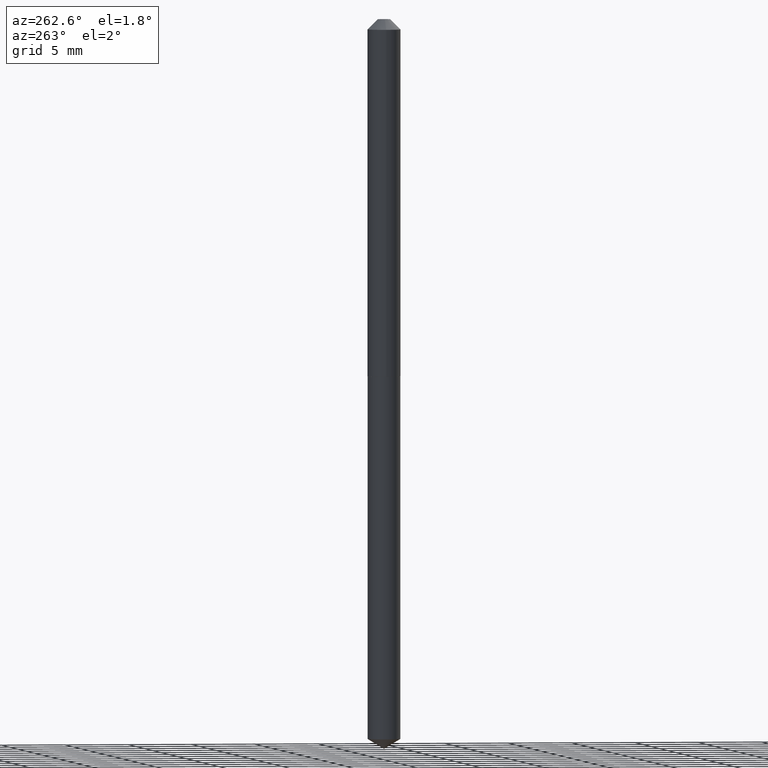
[diagram: clean part render]
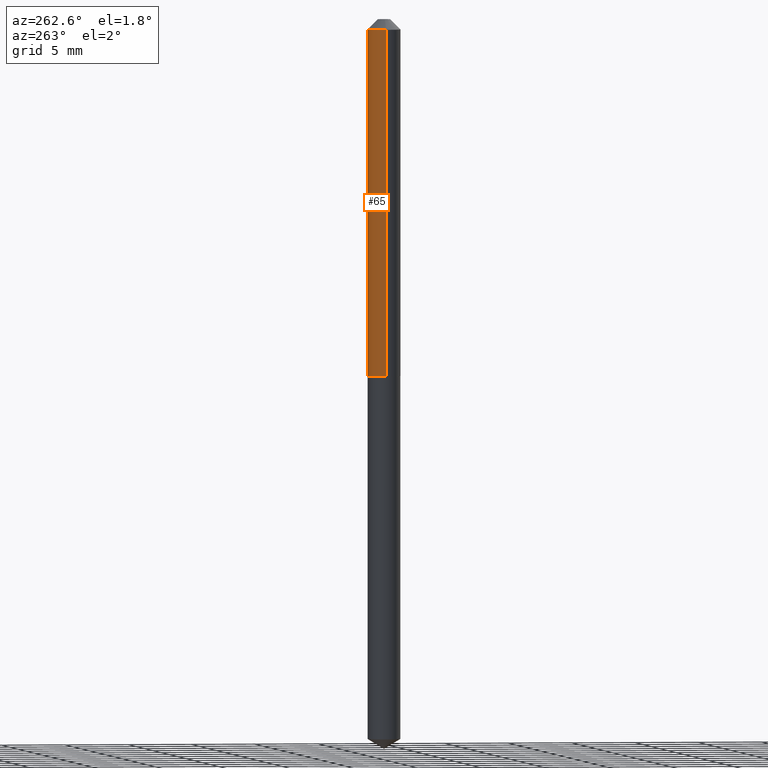
[diagram: same view with one face highlighted and labeled with its STEP entity id]
A machine part, auxiliary view. The second image highlights one B-rep face of the part: STEP entity #65.
In plain terms, the highlighted cylindrical surface (edge-blend (fillet) strip) has radius 1.2891 mm, axis along (-0, 0, 1).
Its self-contained STEP definition (entity closure, byte-faithful):
#6 = EDGE_CURVE ( 'NONE', #131, #77, #123, .T. ) ;
#33 = VERTEX_POINT ( 'NONE', #99 ) ;
#36 = DIRECTION ( 'NONE',  ( 1.000000000000000000, -6.982962677686270655E-15, 0.000000000000000000 ) ) ;
#45 = CYLINDRICAL_SURFACE ( 'NONE', #233, 0.05075000000000008671 ) ;
#52 = CARTESIAN_POINT ( 'NONE',  ( 0.05075000000000014222, -4.198506309958881744E-15, -1.100999999999999979 ) ) ;
#59 = CARTESIAN_POINT ( 'NONE',  ( -0.05075000000000014222, -3.483520515668050958E-15, -1.100999999999999979 ) ) ;
#63 = CIRCLE ( 'NONE', #324, 0.05075000000000001732 ) ;
#65 = ADVANCED_FACE ( 'NONE', ( #309 ), #45, .T. ) ;
#73 = VERTEX_POINT ( 'NONE', #59 ) ;
#77 = VERTEX_POINT ( 'NONE', #314 ) ;
#84 = DIRECTION ( 'NONE',  ( -2.445468806185136877E-29, 3.491481338843145188E-15, 1.000000000000000000 ) ) ;
#92 = DIRECTION ( 'NONE',  ( 1.000000000000000000, -6.982962677686265922E-15, 4.876176775795935793E-29 ) ) ;
#94 = ORIENTED_EDGE ( 'NONE', *, *, #210, .F. ) ;
#99 = CARTESIAN_POINT ( 'NONE',  ( -0.05075000000000001732, -1.616014434554323559E-15, -0.03125000000000021511 ) ) ;
#112 = DIRECTION ( 'NONE',  ( -2.445468806185136597E-29, 3.491481338843145583E-15, 1.000000000000000000 ) ) ;
#123 = LINE ( 'NONE', #375, #305 ) ;
#131 = VERTEX_POINT ( 'NONE', #52 ) ;
#145 = DIRECTION ( 'NONE',  ( -2.445468806185136597E-29, 3.491481338843145583E-15, 1.000000000000000000 ) ) ;
#151 = DIRECTION ( 'NONE',  ( -2.445468806185136877E-29, 3.491481338843145188E-15, 1.000000000000000000 ) ) ;
#162 = ORIENTED_EDGE ( 'NONE', *, *, #6, .F. ) ;
#166 = DIRECTION ( 'NONE',  ( 1.000000000000000000, -6.982962677686265133E-15, 0.000000000000000000 ) ) ;
#181 = CARTESIAN_POINT ( 'NONE',  ( 2.692461155609835411E-29, -3.844120954066303109E-15, -1.100999999999999979 ) ) ;
#183 = EDGE_CURVE ( 'NONE', #73, #33, #230, .T. ) ;
#210 = EDGE_CURVE ( 'NONE', #77, #33, #63, .T. ) ;
#227 = VECTOR ( 'NONE', #84, 39.37007874015748143 ) ;
#230 = LINE ( 'NONE', #350, #227 ) ;
#233 = AXIS2_PLACEMENT_3D ( 'NONE', #289, #112, #92 ) ;
#258 = CARTESIAN_POINT ( 'NONE',  ( 7.642090019328603538E-31, -1.091087918388490390E-16, -0.03125000000000021511 ) ) ;
#282 = ORIENTED_EDGE ( 'NONE', *, *, #183, .T. ) ;
#289 = CARTESIAN_POINT ( 'NONE',  ( 0.000000000000000000, 0.000000000000000000, 0.000000000000000000 ) ) ;
#305 = VECTOR ( 'NONE', #151, 39.37007874015748143 ) ;
#309 = FACE_OUTER_BOUND ( 'NONE', #332, .T. ) ;
#311 = EDGE_CURVE ( 'NONE', #131, #73, #319, .T. ) ;
#314 = CARTESIAN_POINT ( 'NONE',  ( 0.05075000000000001732, -4.634941477314271441E-16, -0.03125000000000021511 ) ) ;
#319 = CIRCLE ( 'NONE', #358, 0.05075000000000014222 ) ;
#324 = AXIS2_PLACEMENT_3D ( 'NONE', #258, #356, #166 ) ;
#332 = EDGE_LOOP ( 'NONE', ( #386, #282, #94, #162 ) ) ;
#350 = CARTESIAN_POINT ( 'NONE',  ( -0.05075000000000008671, 3.606004383982514604E-16, -2.496359558304368800E-30 ) ) ;
#356 = DIRECTION ( 'NONE',  ( -2.445468806185136597E-29, 3.491481338843145583E-15, 1.000000000000000000 ) ) ;
#358 = AXIS2_PLACEMENT_3D ( 'NONE', #181, #145, #36 ) ;
#375 = CARTESIAN_POINT ( 'NONE',  ( 0.05075000000000008671, -3.543853558925785858E-16, 2.474659713716441605E-30 ) ) ;
#386 = ORIENTED_EDGE ( 'NONE', *, *, #311, .T. ) ;